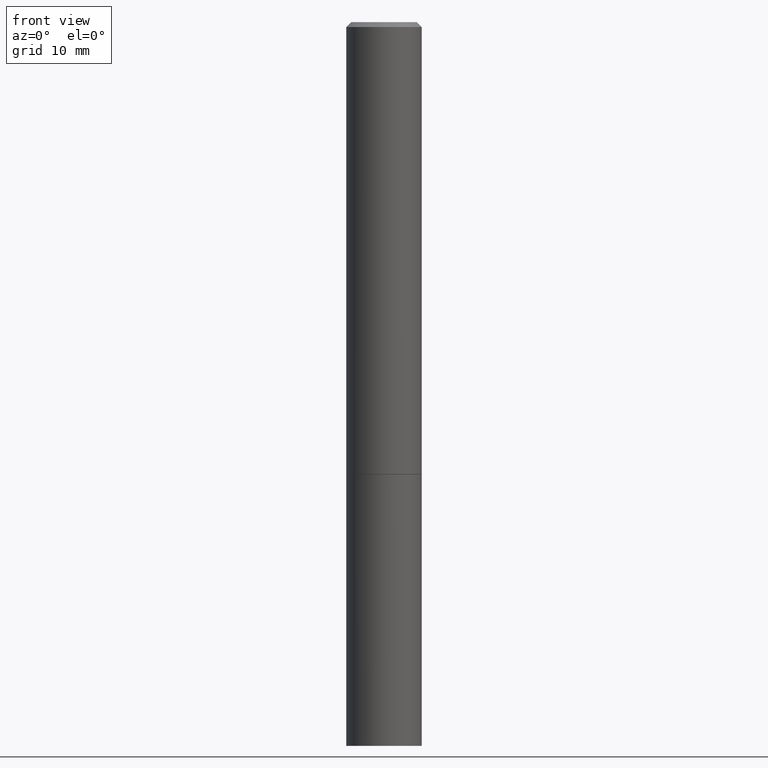
[diagram: clean part render]
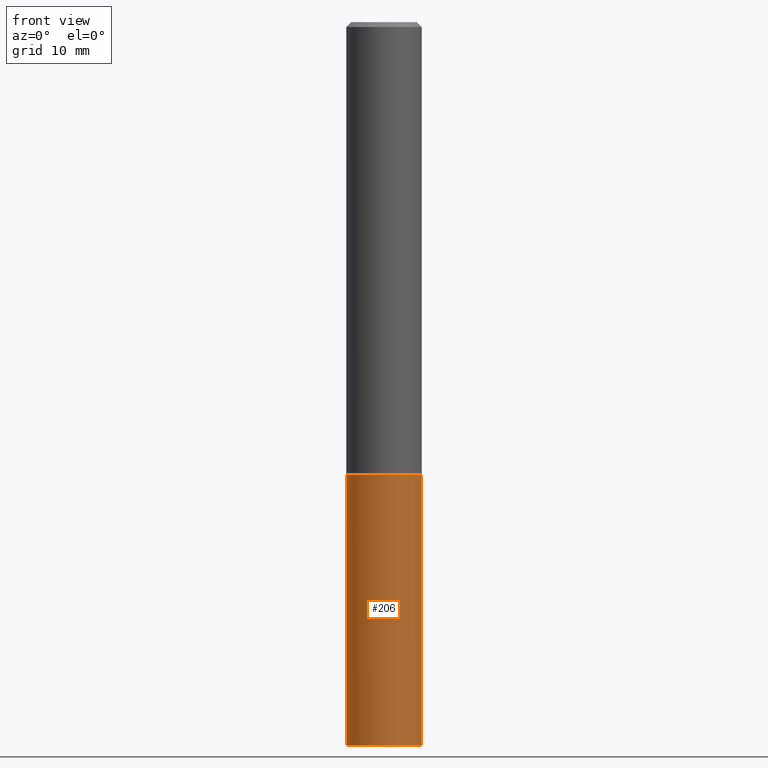
[diagram: same view with one face highlighted and labeled with its STEP entity id]
A machine part, front view. The second image highlights one B-rep face of the part: STEP entity #206.
In plain terms, the highlighted cylindrical surface (partial cylindrical patch) has radius 3.9688 mm, axis along (-0, 0, 1).
Its self-contained STEP definition (entity closure, byte-faithful):
#3 = CIRCLE ( 'NONE', #162, 0.1562500000000000000 ) ;
#8 = ORIENTED_EDGE ( 'NONE', *, *, #30, .T. ) ;
#11 = ORIENTED_EDGE ( 'NONE', *, *, #110, .F. ) ;
#19 = DIRECTION ( 'NONE',  ( -2.445468806185136597E-29, 3.491481338843145583E-15, 1.000000000000000000 ) ) ;
#29 = CYLINDRICAL_SURFACE ( 'NONE', #242, 0.1562500000000000000 ) ;
#30 = EDGE_CURVE ( 'NONE', #370, #246, #3, .T. ) ;
#45 = ORIENTED_EDGE ( 'NONE', *, *, #120, .F. ) ;
#88 = DIRECTION ( 'NONE',  ( 1.000000000000000000, -6.982962677686269077E-15, 0.000000000000000000 ) ) ;
#93 = DIRECTION ( 'NONE',  ( -2.445468806185136597E-29, 3.491481338843145583E-15, 1.000000000000000000 ) ) ;
#94 = CARTESIAN_POINT ( 'NONE',  ( 4.585254011597131119E-29, -6.546527510330898707E-15, -1.875000000000000000 ) ) ;
#100 = ORIENTED_EDGE ( 'NONE', *, *, #137, .T. ) ;
#108 = VERTEX_POINT ( 'NONE', #209 ) ;
#110 = EDGE_CURVE ( 'NONE', #370, #316, #324, .T. ) ;
#115 = CARTESIAN_POINT ( 'NONE',  ( -0.1562500000000000000, 1.110223024625156540E-15, -7.685836078523291160E-30 ) ) ;
#120 = EDGE_CURVE ( 'NONE', #316, #108, #354, .T. ) ;
#137 = EDGE_CURVE ( 'NONE', #246, #108, #322, .T. ) ;
#162 = AXIS2_PLACEMENT_3D ( 'NONE', #230, #19, #172 ) ;
#172 = DIRECTION ( 'NONE',  ( 1.000000000000000000, -6.982962677686262766E-15, 0.000000000000000000 ) ) ;
#181 = VECTOR ( 'NONE', #269, 39.37007874015748143 ) ;
#206 = ADVANCED_FACE ( 'NONE', ( #296 ), #29, .T. ) ;
#209 = CARTESIAN_POINT ( 'NONE',  ( 0.1562500000000000000, -7.637615428719378669E-15, -1.875000000000000000 ) ) ;
#216 = CARTESIAN_POINT ( 'NONE',  ( 0.1562500000000000000, -1.091087918388479174E-15, 7.619026212181150377E-30 ) ) ;
#230 = CARTESIAN_POINT ( 'NONE',  ( 7.336406418555409790E-29, -1.047444401652943635E-14, -3.000000000000000444 ) ) ;
#237 = DIRECTION ( 'NONE',  ( -2.445468806185136597E-29, 3.491481338843145583E-15, 1.000000000000000000 ) ) ;
#242 = AXIS2_PLACEMENT_3D ( 'NONE', #270, #237, #292 ) ;
#246 = VERTEX_POINT ( 'NONE', #352 ) ;
#259 = EDGE_LOOP ( 'NONE', ( #11, #8, #100, #45 ) ) ;
#269 = DIRECTION ( 'NONE',  ( -2.445468806185136877E-29, 3.491481338843145188E-15, 1.000000000000000000 ) ) ;
#270 = CARTESIAN_POINT ( 'NONE',  ( 0.000000000000000000, 0.000000000000000000, 0.000000000000000000 ) ) ;
#283 = AXIS2_PLACEMENT_3D ( 'NONE', #94, #93, #88 ) ;
#292 = DIRECTION ( 'NONE',  ( 1.000000000000000000, -6.982962677686266711E-15, 4.876176775795936353E-29 ) ) ;
#296 = FACE_OUTER_BOUND ( 'NONE', #259, .T. ) ;
#316 = VERTEX_POINT ( 'NONE', #335 ) ;
#322 = LINE ( 'NONE', #216, #389 ) ;
#324 = LINE ( 'NONE', #115, #181 ) ;
#335 = CARTESIAN_POINT ( 'NONE',  ( -0.1562500000000000000, -7.400262738805011779E-15, -1.875000000000000000 ) ) ;
#352 = CARTESIAN_POINT ( 'NONE',  ( 0.1562499999999997224, -1.154639682868123816E-14, -3.000000000000000444 ) ) ;
#354 = CIRCLE ( 'NONE', #283, 0.1562500000000000000 ) ;
#369 = CARTESIAN_POINT ( 'NONE',  ( -0.1562499999999997224, -9.383356098140961124E-15, -3.000000000000000444 ) ) ;
#370 = VERTEX_POINT ( 'NONE', #369 ) ;
#381 = DIRECTION ( 'NONE',  ( -2.445468806185136877E-29, 3.491481338843145188E-15, 1.000000000000000000 ) ) ;
#389 = VECTOR ( 'NONE', #381, 39.37007874015748143 ) ;